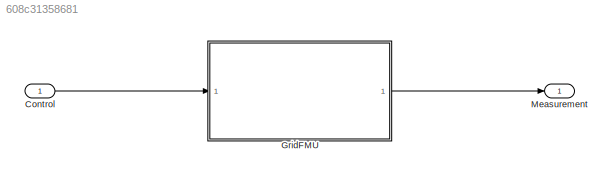
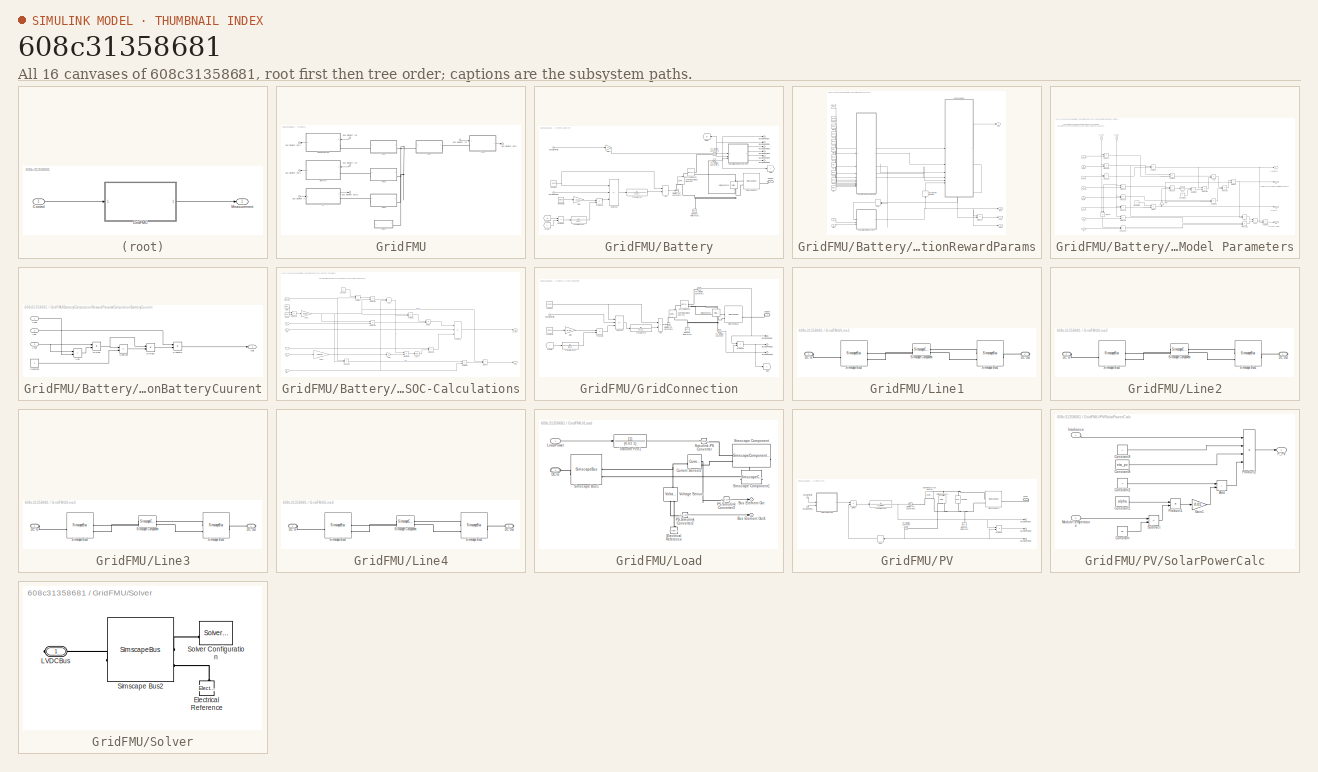
[diagram: thumbnail index - all 16 canvases of the model, root first then tree order]
MODEL slx_608c31358681
KIND model
CONFIG AbsTol = auto
CONFIG EnableMultiTasking = off
CONFIG FixedStep = Ts
CONFIG MaxStep = auto
CONFIG MinStep = auto
CONFIG RelTol = 1e-3
CONFIG SampleTimeConstraint = Unconstrained
CONFIG SolverName = FixedStepAuto
CONFIG StartTime = 0.0
CONFIG StopTime = 10.0
BLOCK [Inport] Control
  OutDataTypeStr = Bus: bus3
BLOCK [SubSystem] GridFMU
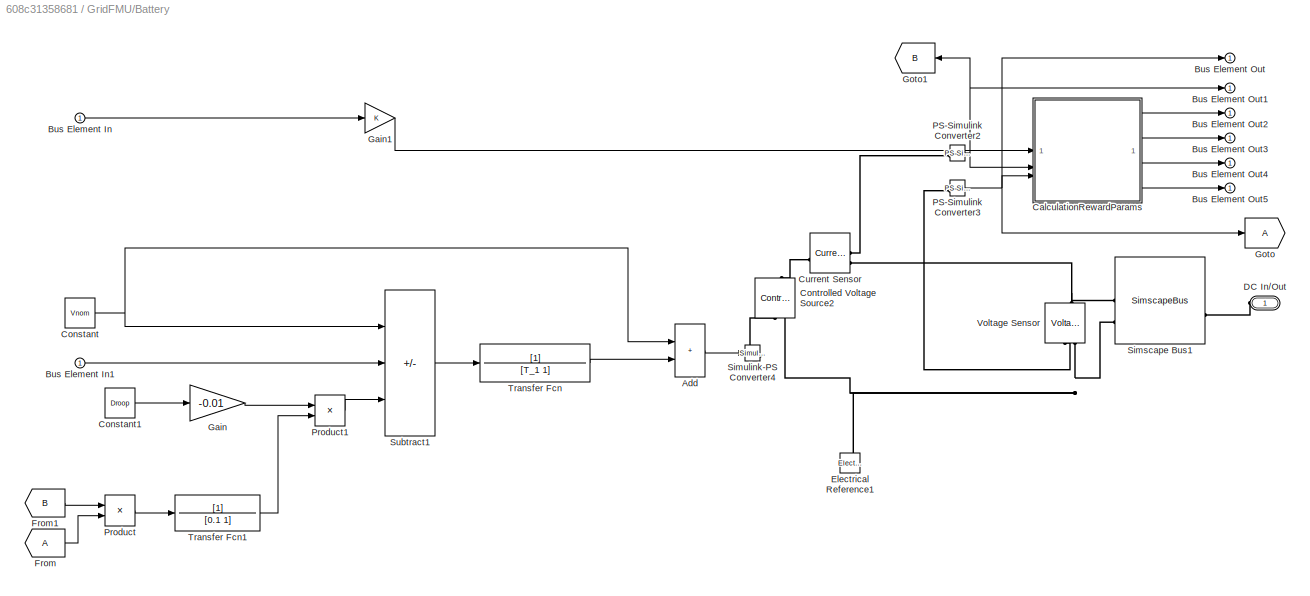
BLOCK [SubSystem] GridFMU/Battery
  NameLocation = top
BLOCK [Sum] GridFMU/Battery/Add
  IconShape = rectangular
BLOCK [Inport] GridFMU/Battery/Bus Element In
BLOCK [Inport] GridFMU/Battery/Bus Element In1
BLOCK [Outport] GridFMU/Battery/Bus Element Out
BLOCK [Outport] GridFMU/Battery/Bus Element Out1
BLOCK [Outport] GridFMU/Battery/Bus Element Out2
BLOCK [Outport] GridFMU/Battery/Bus Element Out3
BLOCK [Outport] GridFMU/Battery/Bus Element Out4
BLOCK [Outport] GridFMU/Battery/Bus Element Out5
BLOCK [SubSystem] GridFMU/Battery/CalculationRewardParams
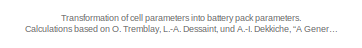
[diagram: GridFMU/Battery/CalculationRewardParams/Calculation of Model Parameters - part 1/2, top left region]
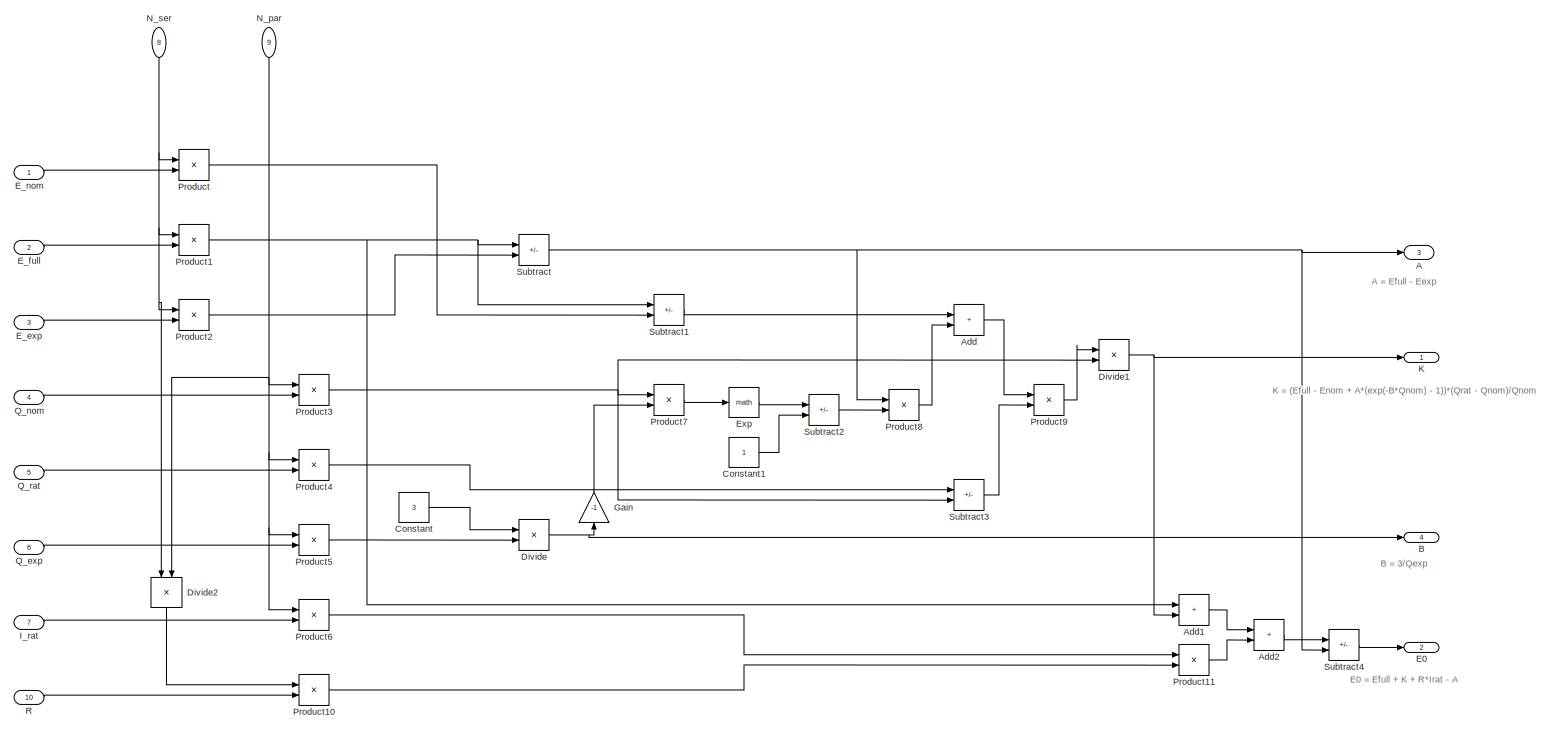
[diagram: GridFMU/Battery/CalculationRewardParams/Calculation of Model Parameters - part 2/2, most of the canvas]
BLOCK [SubSystem] GridFMU/Battery/CalculationRewardParams/Calculation of Model Parameters
BLOCK [Outport] GridFMU/Battery/CalculationRewardParams/Calculation of Model Parameters/A
  Port = 3
BLOCK [Sum] GridFMU/Battery/CalculationRewardParams/Calculation of Model Parameters/Add
  IconShape = rectangular
BLOCK [Sum] GridFMU/Battery/CalculationRewardParams/Calculation of Model Parameters/Add1
  IconShape = rectangular
BLOCK [Sum] GridFMU/Battery/CalculationRewardParams/Calculation of Model Parameters/Add2
  IconShape = rectangular
BLOCK [Outport] GridFMU/Battery/CalculationRewardParams/Calculation of Model Parameters/B
  Port = 4
BLOCK [Constant] GridFMU/Battery/CalculationRewardParams/Calculation of Model Parameters/Constant
  Value = 3
BLOCK [Constant] GridFMU/Battery/CalculationRewardParams/Calculation of Model Parameters/Constant1
BLOCK [Product] GridFMU/Battery/CalculationRewardParams/Calculation of Model Parameters/Divide
  Inputs = */
BLOCK [Product] GridFMU/Battery/CalculationRewardParams/Calculation of Model Parameters/Divide1
  Inputs = */
BLOCK [Product] GridFMU/Battery/CalculationRewardParams/Calculation of Model Parameters/Divide2
  Inputs = */
  NameLocation = left
BLOCK [Outport] GridFMU/Battery/CalculationRewardParams/Calculation of Model Parameters/E0
  Port = 2
BLOCK [Inport] GridFMU/Battery/CalculationRewardParams/Calculation of Model Parameters/E_exp
  Port = 3
BLOCK [Inport] GridFMU/Battery/CalculationRewardParams/Calculation of Model Parameters/E_full
  Port = 2
BLOCK [Inport] GridFMU/Battery/CalculationRewardParams/Calculation of Model Parameters/E_nom
BLOCK [Math] GridFMU/Battery/CalculationRewardParams/Calculation of Model Parameters/Exp
BLOCK [Gain] GridFMU/Battery/CalculationRewardParams/Calculation of Model Parameters/Gain
  Gain = -1
  NameLocation = right
BLOCK [Inport] GridFMU/Battery/CalculationRewardParams/Calculation of Model Parameters/I_rat
  Port = 7
BLOCK [Outport] GridFMU/Battery/CalculationRewardParams/Calculation of Model Parameters/K
BLOCK [Inport] GridFMU/Battery/CalculationRewardParams/Calculation of Model Parameters/N_par
  NameLocation = left
  Port = 9
BLOCK [Inport] GridFMU/Battery/CalculationRewardParams/Calculation of Model Parameters/N_ser
  NameLocation = left
  Port = 8
BLOCK [Product] GridFMU/Battery/CalculationRewardParams/Calculation of Model Parameters/Product
BLOCK [Product] GridFMU/Battery/CalculationRewardParams/Calculation of Model Parameters/Product1
BLOCK [Product] GridFMU/Battery/CalculationRewardParams/Calculation of Model Parameters/Product10
BLOCK [Product] GridFMU/Battery/CalculationRewardParams/Calculation of Model Parameters/Product11
BLOCK [Product] GridFMU/Battery/CalculationRewardParams/Calculation of Model Parameters/Product2
BLOCK [Product] GridFMU/Battery/CalculationRewardParams/Calculation of Model Parameters/Product3
BLOCK [Product] GridFMU/Battery/CalculationRewardParams/Calculation of Model Parameters/Product4
BLOCK [Product] GridFMU/Battery/CalculationRewardParams/Calculation of Model Parameters/Product5
BLOCK [Product] GridFMU/Battery/CalculationRewardParams/Calculation of Model Parameters/Product6
BLOCK [Product] GridFMU/Battery/CalculationRewardParams/Calculation of Model Parameters/Product7
BLOCK [Product] GridFMU/Battery/CalculationRewardParams/Calculation of Model Parameters/Product8
BLOCK [Product] GridFMU/Battery/CalculationRewardParams/Calculation of Model Parameters/Product9
BLOCK [Inport] GridFMU/Battery/CalculationRewardParams/Calculation of Model Parameters/Q_exp
  Port = 6
BLOCK [Inport] GridFMU/Battery/CalculationRewardParams/Calculation of Model Parameters/Q_nom
  Port = 4
BLOCK [Inport] GridFMU/Battery/CalculationRewardParams/Calculation of Model Parameters/Q_rat
  Port = 5
BLOCK [Inport] GridFMU/Battery/CalculationRewardParams/Calculation of Model Parameters/R
  Port = 10
BLOCK [Sum] GridFMU/Battery/CalculationRewardParams/Calculation of Model Parameters/Subtract
  IconShape = rectangular
  Inputs = +-
BLOCK [Sum] GridFMU/Battery/CalculationRewardParams/Calculation of Model Parameters/Subtract1
  IconShape = rectangular
  Inputs = +-
BLOCK [Sum] GridFMU/Battery/CalculationRewardParams/Calculation of Model Parameters/Subtract2
  IconShape = rectangular
  Inputs = +-
BLOCK [Sum] GridFMU/Battery/CalculationRewardParams/Calculation of Model Parameters/Subtract3
  IconShape = rectangular
  Inputs = +-
BLOCK [Sum] GridFMU/Battery/CalculationRewardParams/Calculation of Model Parameters/Subtract4
  IconShape = rectangular
  Inputs = +-
BLOCK [SubSystem] GridFMU/Battery/CalculationRewardParams/CalculationBatteryCuurent
BLOCK [Sum] GridFMU/Battery/CalculationRewardParams/CalculationBatteryCuurent/Add
  IconShape = rectangular
BLOCK [Constant] GridFMU/Battery/CalculationRewardParams/CalculationBatteryCuurent/Constant
BLOCK [Product] GridFMU/Battery/CalculationRewardParams/CalculationBatteryCuurent/Divide
  Inputs = */
BLOCK [Product] GridFMU/Battery/CalculationRewardParams/CalculationBatteryCuurent/Divide1
  Inputs = */
BLOCK [Outport] GridFMU/Battery/CalculationRewardParams/CalculationBatteryCuurent/Ibat
BLOCK [Inport] GridFMU/Battery/CalculationRewardParams/CalculationBatteryCuurent/Inet
  Port = 2
BLOCK [Product] GridFMU/Battery/CalculationRewardParams/CalculationBatteryCuurent/Product2
BLOCK [Sum] GridFMU/Battery/CalculationRewardParams/CalculationBatteryCuurent/Subtract
  IconShape = rectangular
  Inputs = -+
BLOCK [Inport] GridFMU/Battery/CalculationRewardParams/CalculationBatteryCuurent/Vbat
  NameLocation = top
BLOCK [Inport] GridFMU/Battery/CalculationRewardParams/CalculationBatteryCuurent/Vnet
  Port = 3
BLOCK [Delay] GridFMU/Battery/CalculationRewardParams/Delay
  DelayLength = 1
  InitialCondition = 1
  InitialConditionSource = Input port
  InputPortMap = u0,p4
  NameLocation = top
BLOCK [DiscreteIntegrator] GridFMU/Battery/CalculationRewardParams/Discrete-Time Integrator
  ICPrevOutput = DiscIntNeverNeededParam
  ICPrevScaledInput = DiscIntNeverNeededParam
  InitialConditionSetting = Auto
  NameLocation = right
  SampleTime = -1
BLOCK [Constant] GridFMU/Battery/CalculationRewardParams/Eexp
  Value = Eexp
BLOCK [Constant] GridFMU/Battery/CalculationRewardParams/Efull
  Value = Efull
BLOCK [Constant] GridFMU/Battery/CalculationRewardParams/Enom
  Value = Enom
BLOCK [Inport] GridFMU/Battery/CalculationRewardParams/I
  Port = 2
BLOCK [Outport] GridFMU/Battery/CalculationRewardParams/Ibat
  Port = 2
BLOCK [Constant] GridFMU/Battery/CalculationRewardParams/Irat
  Value = Irat
BLOCK [Constant] GridFMU/Battery/CalculationRewardParams/Npar
  Value = Npar
BLOCK [Constant] GridFMU/Battery/CalculationRewardParams/Nser
  Value = Nser
BLOCK [Outport] GridFMU/Battery/CalculationRewardParams/Pbat
  Port = 4
BLOCK [Product] GridFMU/Battery/CalculationRewardParams/Product
BLOCK [Constant] GridFMU/Battery/CalculationRewardParams/Qexp
  Value = Qexp
BLOCK [Constant] GridFMU/Battery/CalculationRewardParams/Qnom
  Value = Qnom
BLOCK [Constant] GridFMU/Battery/CalculationRewardParams/Qrat
  Value = Qrat
BLOCK [Constant] GridFMU/Battery/CalculationRewardParams/Rint
  Value = Rint
BLOCK [Outport] GridFMU/Battery/CalculationRewardParams/SOC
BLOCK [SubSystem] GridFMU/Battery/CalculationRewardParams/SOC-Calculations
BLOCK [Inport] GridFMU/Battery/CalculationRewardParams/SOC-Calculations/A
  Port = 4
BLOCK [Sum] GridFMU/Battery/CalculationRewardParams/SOC-Calculations/Add
  IconShape = rectangular
BLOCK [Inport] GridFMU/Battery/CalculationRewardParams/SOC-Calculations/B
  Port = 5
BLOCK [Constant] GridFMU/Battery/CalculationRewardParams/SOC-Calculations/Constant
BLOCK [Product] GridFMU/Battery/CalculationRewardParams/SOC-Calculations/Divide
  Inputs = /*
BLOCK [Product] GridFMU/Battery/CalculationRewardParams/SOC-Calculations/Divide1
  Inputs = /*
BLOCK [Inport] GridFMU/Battery/CalculationRewardParams/SOC-Calculations/E0
  Port = 3
BLOCK [Outport] GridFMU/Battery/CalculationRewardParams/SOC-Calculations/E_Bat
  NameLocation = top
  Port = 2
BLOCK [Math] GridFMU/Battery/CalculationRewardParams/SOC-Calculations/Exp
BLOCK [Gain] GridFMU/Battery/CalculationRewardParams/SOC-Calculations/Gain
  Gain = -1
BLOCK [Gain] GridFMU/Battery/CalculationRewardParams/SOC-Calculations/Gain2
  Gain = 1/3600.0
BLOCK [Gain] GridFMU/Battery/CalculationRewardParams/SOC-Calculations/Gain3
  Gain = 3600.0
BLOCK [Inport] GridFMU/Battery/CalculationRewardParams/SOC-Calculations/K
  Port = 2
BLOCK [Constant] GridFMU/Battery/CalculationRewardParams/SOC-Calculations/Npar1
  Value = Npar
BLOCK [Product] GridFMU/Battery/CalculationRewardParams/SOC-Calculations/Product1
BLOCK [Product] GridFMU/Battery/CalculationRewardParams/SOC-Calculations/Product2
BLOCK [Product] GridFMU/Battery/CalculationRewardParams/SOC-Calculations/Product3
BLOCK [Product] GridFMU/Battery/CalculationRewardParams/SOC-Calculations/Product4
BLOCK [Product] GridFMU/Battery/CalculationRewardParams/SOC-Calculations/Product5
BLOCK [Product] GridFMU/Battery/CalculationRewardParams/SOC-Calculations/Product6
BLOCK [Constant] GridFMU/Battery/CalculationRewardParams/SOC-Calculations/Qrat1
  Value = Qrat
BLOCK [Outport] GridFMU/Battery/CalculationRewardParams/SOC-Calculations/SOC
BLOCK [Inport] GridFMU/Battery/CalculationRewardParams/SOC-Calculations/SOC_Init
BLOCK [Sum] GridFMU/Battery/CalculationRewardParams/SOC-Calculations/Subtract
  IconShape = rectangular
  Inputs = +-
BLOCK [Sum] GridFMU/Battery/CalculationRewardParams/SOC-Calculations/Subtract1
  IconShape = rectangular
  Inputs = -++
BLOCK [Sum] GridFMU/Battery/CalculationRewardParams/SOC-Calculations/Subtract2
  IconShape = rectangular
  Inputs = +-
BLOCK [Sum] GridFMU/Battery/CalculationRewardParams/SOC-Calculations/Subtract3
  IconShape = rectangular
  Inputs = +-
BLOCK [Inport] GridFMU/Battery/CalculationRewardParams/SOC-Calculations/idt
  Port = 6
BLOCK [Inport] GridFMU/Battery/CalculationRewardParams/SOC_Init
BLOCK [Outport] GridFMU/Battery/CalculationRewardParams/Vbat
  Port = 3
BLOCK [Inport] GridFMU/Battery/CalculationRewardParams/Vref
  Port = 3
BLOCK [Constant] GridFMU/Battery/Constant
  Value = Vnom
BLOCK [Constant] GridFMU/Battery/Constant1
  Value = Droop
BLOCK [Reference] GridFMU/Battery/Controlled Voltage Source2  REF=fl_lib/Electrical/Electrical Sources/Controlled Voltage
Source
  NameLocation = right
  SourceBlock = fl_lib/Electrical/Electrical Sources/Controlled Voltage\nSource
  SourceType = Controlled Voltage\nSource
BLOCK [Reference] GridFMU/Battery/Current Sensor  REF=fl_lib/Electrical/Electrical Sensors/Current Sensor
  SourceBlock = fl_lib/Electrical/Electrical Sensors/Current Sensor
  SourceType = Current Sensor
BLOCK [PMIOPort] GridFMU/Battery/DC In//Out
  NameLocation = top
  Side = Left
BLOCK [Reference] GridFMU/Battery/Electrical Reference1  REF=fl_lib/Electrical/Electrical Elements/Electrical Reference
  NameLocation = right
  SourceBlock = fl_lib/Electrical/Electrical Elements/Electrical Reference
  SourceType = Electrical Reference
BLOCK [From] GridFMU/Battery/From
BLOCK [From] GridFMU/Battery/From1
  GotoTag = B
BLOCK [Gain] GridFMU/Battery/Gain
  Gain = -0.01
BLOCK [Gain] GridFMU/Battery/Gain1
BLOCK [Goto] GridFMU/Battery/Goto
BLOCK [Goto] GridFMU/Battery/Goto1
  GotoTag = B
  NameLocation = top
BLOCK [Reference] GridFMU/Battery/PS-Simulink Converter2  REF=nesl_utility/PS-Simulink
Converter
  SourceBlock = nesl_utility/PS-Simulink\nConverter
  SourceType = PS-Simulink\nConverter
BLOCK [Reference] GridFMU/Battery/PS-Simulink Converter3  REF=nesl_utility/PS-Simulink
Converter
  SourceBlock = nesl_utility/PS-Simulink\nConverter
  SourceType = PS-Simulink\nConverter
BLOCK [Product] GridFMU/Battery/Product
BLOCK [Product] GridFMU/Battery/Product1
BLOCK [SimscapeBus] GridFMU/Battery/Simscape Bus1
  HierarchyStrings = DCHigh;DCLow
  NameLocation = top
BLOCK [Reference] GridFMU/Battery/Simulink-PS Converter4  REF=nesl_utility/Simulink-PS
Converter
  SourceBlock = nesl_utility/Simulink-PS\nConverter
  SourceType = Simulink-PS\nConverter
BLOCK [Sum] GridFMU/Battery/Subtract1
  IconShape = rectangular
  Inputs = -++
BLOCK [TransferFcn] GridFMU/Battery/Transfer Fcn
  Denominator = [T_1 1]
BLOCK [TransferFcn] GridFMU/Battery/Transfer Fcn1
  Denominator = [0.1 1]
BLOCK [Reference] GridFMU/Battery/Voltage Sensor  REF=fl_lib/Electrical/Electrical Sensors/Voltage Sensor
  NameLocation = right
  SourceBlock = fl_lib/Electrical/Electrical Sensors/Voltage Sensor
  SourceType = Voltage Sensor
BLOCK [Inport] GridFMU/Bus Element In1
BLOCK [Inport] GridFMU/Bus Element In2
BLOCK [Inport] GridFMU/Bus Element In6
  NameLocation = top
BLOCK [Inport] GridFMU/Bus Element In9
  NameLocation = top
BLOCK [Outport] GridFMU/Bus Element Out1
  NameLocation = top
BLOCK [Outport] GridFMU/Bus Element Out12
BLOCK [Outport] GridFMU/Bus Element Out3
  NameLocation = top
BLOCK [Outport] GridFMU/Bus Element Out5
BLOCK [SubSystem] GridFMU/GridConnection
  NameLocation = top
BLOCK [Sum] GridFMU/GridConnection/Add
  IconShape = rectangular
BLOCK [Inport] GridFMU/GridConnection/Bus Element In
BLOCK [Outport] GridFMU/GridConnection/Bus Element Out
BLOCK [Outport] GridFMU/GridConnection/Bus Element Out1
BLOCK [Outport] GridFMU/GridConnection/Bus Element Out2
BLOCK [Constant] GridFMU/GridConnection/Constant
  Value = Vnom
BLOCK [Constant] GridFMU/GridConnection/Constant2
  Value = Droop
BLOCK [Reference] GridFMU/GridConnection/Controlled Voltage Source2  REF=fl_lib/Electrical/Electrical Sources/Controlled Voltage
Source
  NameLocation = right
  SourceBlock = fl_lib/Electrical/Electrical Sources/Controlled Voltage\nSource
  SourceType = Controlled Voltage\nSource
BLOCK [Reference] GridFMU/GridConnection/Current Sensor  REF=fl_lib/Electrical/Electrical Sensors/Current Sensor
  SourceBlock = fl_lib/Electrical/Electrical Sensors/Current Sensor
  SourceType = Current Sensor
BLOCK [PMIOPort] GridFMU/GridConnection/DC In//Out
  NameLocation = top
  Side = Left
BLOCK [Reference] GridFMU/GridConnection/Electrical Reference1  REF=fl_lib/Electrical/Electrical Elements/Electrical Reference
  NameLocation = right
  SourceBlock = fl_lib/Electrical/Electrical Elements/Electrical Reference
  SourceType = Electrical Reference
BLOCK [From] GridFMU/GridConnection/From3
BLOCK [Gain] GridFMU/GridConnection/Gain
  Gain = -0.01
BLOCK [Goto] GridFMU/GridConnection/Goto
BLOCK [Reference] GridFMU/GridConnection/PS-Simulink Converter  REF=nesl_utility/PS-Simulink
Converter
  SourceBlock = nesl_utility/PS-Simulink\nConverter
  SourceType = PS-Simulink\nConverter
BLOCK [Reference] GridFMU/GridConnection/PS-Simulink Converter1  REF=nesl_utility/PS-Simulink
Converter
  SourceBlock = nesl_utility/PS-Simulink\nConverter
  SourceType = PS-Simulink\nConverter
BLOCK [Product] GridFMU/GridConnection/Product1
BLOCK [Product] GridFMU/GridConnection/Product2
BLOCK [SimscapeBus] GridFMU/GridConnection/Simscape Bus1
  HierarchyStrings = DCHigh;DCLow
  NameLocation = top
BLOCK [Reference] GridFMU/GridConnection/Simulink-PS Converter4  REF=nesl_utility/Simulink-PS
Converter
  SourceBlock = nesl_utility/Simulink-PS\nConverter
  SourceType = Simulink-PS\nConverter
BLOCK [Sum] GridFMU/GridConnection/Subtract1
  IconShape = rectangular
  Inputs = -++
BLOCK [TransferFcn] GridFMU/GridConnection/Transfer Fcn
  Denominator = [T_1 1]
BLOCK [TransferFcn] GridFMU/GridConnection/Transfer Fcn1
  Denominator = [0.1 1]
BLOCK [Reference] GridFMU/GridConnection/Voltage Sensor  REF=fl_lib/Electrical/Electrical Sensors/Voltage Sensor
  NameLocation = right
  SourceBlock = fl_lib/Electrical/Electrical Sensors/Voltage Sensor
  SourceType = Voltage Sensor
BLOCK [SubSystem] GridFMU/Line1
  Description = Simple model of a wire with two conductors.\n\nResistor and Inductor of the wire are calculated based on distance and radius of the conductors and the length of the line.
BLOCK [PMIOPort] GridFMU/Line1/DC In
  Port = 2
  Side = Left
BLOCK [PMIOPort] GridFMU/Line1/DC Out
  NameLocation = top
  Side = Right
BLOCK [SimscapeBus] GridFMU/Line1/Simscape Bus1
  HierarchyStrings = DCHigh;DCLow
  NameLocation = top
BLOCK [SimscapeBus] GridFMU/Line1/Simscape Bus2
  HierarchyStrings = DCHigh;DCLow
BLOCK [SimscapeComponentBlock] GridFMU/Line1/Simscape Component
  ClassName = Wire_2Cond
  ComponentPath = Wire_2Cond
  ComponentVariantNames = ["Wire_2Cond"]
  ComponentVariants = ["Wire_2Cond"]
  CopyFcn = simscape.engine.sli.internal.componentblockcallback(gcbh,'COPY')
  InternalSimscapePortConfiguration = {"Bottom":[],"Left":[{"id":"hIn","label":"Hin","type":"foundation.electrical.electrical"},{"id":"lIn","label":"Lin","type":"foundation.electrical.electrical"}],"Right":[{"id":"hOut","label":"Hout","type":"foundation.electrical.electrical"},{"id":"lOut","label":"Lout","type":"foundation.electrical.electrical"}],"Top":[]}  <repeated x4 — deduplicated; at blocks: Simscape Component>
  L = l
  L_conf = compiletime
  L_unit = 1
  Lh = 0
  Lh_nominal_specify = off
  Lh_nominal_unit = A
  Lh_nominal_value = 1
  Lh_priority = None
  Lh_specify = off
  Lh_unit = A
  Ll = 0
  Ll_nominal_specify = off
  Ll_nominal_unit = A
  Ll_nominal_value = 1
  Ll_priority = None
  Ll_specify = off
  Ll_unit = A
  MaskType = wire2 Conductors
  PreCopyFcn = simscape.engine.sli.internal.componentblockcallback(gcbh,'PRECOPY')
  PreDeleteFcn = simscape.engine.sli.internal.componentblockcallback(gcbh,'PREDELETE')
  SchemaVersion = 1
  SourceFile = Wire_2Cond
  d = d
  d_conf = compiletime
  d_unit = 1
  r = r
  r_conf = compiletime
  r_unit = 1
  specR = 1.68e-8
  specR_conf = compiletime
  specR_unit = Ohm
BLOCK [SubSystem] GridFMU/Line2
  Description = Simple model of a wire with two conductors.\n\nResistor and Inductor of the wire are calculated based on distance and radius of the conductors and the length of the line.
BLOCK [PMIOPort] GridFMU/Line2/DC In
  Port = 2
  Side = Left
BLOCK [PMIOPort] GridFMU/Line2/DC Out
  NameLocation = top
  Side = Right
BLOCK [SimscapeBus] GridFMU/Line2/Simscape Bus1
  HierarchyStrings = DCHigh;DCLow
  NameLocation = top
BLOCK [SimscapeBus] GridFMU/Line2/Simscape Bus2
  HierarchyStrings = DCHigh;DCLow
BLOCK [SimscapeComponentBlock] GridFMU/Line2/Simscape Component
  ClassName = Wire_2Cond
  ComponentPath = Wire_2Cond
  ComponentVariantNames = ["Wire_2Cond"]
  ComponentVariants = ["Wire_2Cond"]
  CopyFcn = simscape.engine.sli.internal.componentblockcallback(gcbh,'COPY')
  L = l
  L_conf = compiletime
  L_unit = 1
  Lh = 0
  Lh_nominal_specify = off
  Lh_nominal_unit = A
  Lh_nominal_value = 1
  Lh_priority = None
  Lh_specify = off
  Lh_unit = A
  Ll = 0
  Ll_nominal_specify = off
  Ll_nominal_unit = A
  Ll_nominal_value = 1
  Ll_priority = None
  Ll_specify = off
  Ll_unit = A
  MaskType = wire2 Conductors
  PreCopyFcn = simscape.engine.sli.internal.componentblockcallback(gcbh,'PRECOPY')
  PreDeleteFcn = simscape.engine.sli.internal.componentblockcallback(gcbh,'PREDELETE')
  SchemaVersion = 1
  SourceFile = Wire_2Cond
  d = d
  d_conf = compiletime
  d_unit = 1
  r = r
  r_conf = compiletime
  r_unit = 1
  specR = 1.68e-8
  specR_conf = compiletime
  specR_unit = Ohm
BLOCK [SubSystem] GridFMU/Line3
  Description = Simple model of a wire with two conductors.\n\nResistor and Inductor of the wire are calculated based on distance and radius of the conductors and the length of the line.
BLOCK [PMIOPort] GridFMU/Line3/DC In
  Port = 2
  Side = Left
BLOCK [PMIOPort] GridFMU/Line3/DC Out
  NameLocation = top
  Side = Right
BLOCK [SimscapeBus] GridFMU/Line3/Simscape Bus1
  HierarchyStrings = DCHigh;DCLow
  NameLocation = top
BLOCK [SimscapeBus] GridFMU/Line3/Simscape Bus2
  HierarchyStrings = DCHigh;DCLow
BLOCK [SimscapeComponentBlock] GridFMU/Line3/Simscape Component
  ClassName = Wire_2Cond
  ComponentPath = Wire_2Cond
  ComponentVariantNames = ["Wire_2Cond"]
  ComponentVariants = ["Wire_2Cond"]
  CopyFcn = simscape.engine.sli.internal.componentblockcallback(gcbh,'COPY')
  L = l
  L_conf = compiletime
  L_unit = 1
  Lh = 0
  Lh_nominal_specify = off
  Lh_nominal_unit = A
  Lh_nominal_value = 1
  Lh_priority = None
  Lh_specify = off
  Lh_unit = A
  Ll = 0
  Ll_nominal_specify = off
  Ll_nominal_unit = A
  Ll_nominal_value = 1
  Ll_priority = None
  Ll_specify = off
  Ll_unit = A
  MaskType = wire2 Conductors
  PreCopyFcn = simscape.engine.sli.internal.componentblockcallback(gcbh,'PRECOPY')
  PreDeleteFcn = simscape.engine.sli.internal.componentblockcallback(gcbh,'PREDELETE')
  SchemaVersion = 1
  SourceFile = Wire_2Cond
  d = d
  d_conf = compiletime
  d_unit = 1
  r = r
  r_conf = compiletime
  r_unit = 1
  specR = 1.68e-8
  specR_conf = compiletime
  specR_unit = Ohm
BLOCK [SubSystem] GridFMU/Line4
  Description = Simple model of a wire with two conductors.\n\nResistor and Inductor of the wire are calculated based on distance and radius of the conductors and the length of the line.
BLOCK [PMIOPort] GridFMU/Line4/DC In
  Port = 2
  Side = Left
BLOCK [PMIOPort] GridFMU/Line4/DC Out
  NameLocation = top
  Side = Right
BLOCK [SimscapeBus] GridFMU/Line4/Simscape Bus1
  HierarchyStrings = DCHigh;DCLow
  NameLocation = top
BLOCK [SimscapeBus] GridFMU/Line4/Simscape Bus2
  HierarchyStrings = DCHigh;DCLow
BLOCK [SimscapeComponentBlock] GridFMU/Line4/Simscape Component
  ClassName = Wire_2Cond
  ComponentPath = Wire_2Cond
  ComponentVariantNames = ["Wire_2Cond"]
  ComponentVariants = ["Wire_2Cond"]
  CopyFcn = simscape.engine.sli.internal.componentblockcallback(gcbh,'COPY')
  L = l
  L_conf = compiletime
  L_unit = 1
  Lh = 0
  Lh_nominal_specify = off
  Lh_nominal_unit = A
  Lh_nominal_value = 1
  Lh_priority = None
  Lh_specify = off
  Lh_unit = A
  Ll = 0
  Ll_nominal_specify = off
  Ll_nominal_unit = A
  Ll_nominal_value = 1
  Ll_priority = None
  Ll_specify = off
  Ll_unit = A
  MaskType = wire2 Conductors
  PreCopyFcn = simscape.engine.sli.internal.componentblockcallback(gcbh,'PRECOPY')
  PreDeleteFcn = simscape.engine.sli.internal.componentblockcallback(gcbh,'PREDELETE')
  SchemaVersion = 1
  SourceFile = Wire_2Cond
  d = d
  d_conf = compiletime
  d_unit = 1
  r = r
  r_conf = compiletime
  r_unit = 1
  specR = 1.68e-8
  specR_conf = compiletime
  specR_unit = Ohm
BLOCK [SubSystem] GridFMU/Load
BLOCK [Outport] GridFMU/Load/Bus Element Out
BLOCK [Outport] GridFMU/Load/Bus Element Out4
BLOCK [Reference] GridFMU/Load/Current Sensor2  REF=fl_lib/Electrical/Electrical Sensors/Current Sensor
  SourceBlock = fl_lib/Electrical/Electrical Sensors/Current Sensor
  SourceType = Current Sensor
BLOCK [PMIOPort] GridFMU/Load/DC In
  Side = Left
BLOCK [Reference] GridFMU/Load/Electrical Reference  REF=fl_lib/Electrical/Electrical Elements/Electrical Reference
  NameLocation = right
  SourceBlock = fl_lib/Electrical/Electrical Elements/Electrical Reference
  SourceType = Electrical Reference
BLOCK [Inport] GridFMU/Load/LoadPower
BLOCK [Reference] GridFMU/Load/PS-Simulink Converter2  REF=nesl_utility/PS-Simulink
Converter
  SourceBlock = nesl_utility/PS-Simulink\nConverter
  SourceType = PS-Simulink\nConverter
BLOCK [Reference] GridFMU/Load/PS-Simulink Converter3  REF=nesl_utility/PS-Simulink
Converter
  SourceBlock = nesl_utility/PS-Simulink\nConverter
  SourceType = PS-Simulink\nConverter
BLOCK [SimscapeBus] GridFMU/Load/Simscape Bus1
  HierarchyStrings = DCHigh;DCLow
BLOCK [SimscapeComponentBlock] GridFMU/Load/Simscape Component
  ClassName = VariablePowerLoad
  ComponentPath = VariablePowerLoad
  ComponentVariantNames = ["VariablePowerLoad"]
  ComponentVariants = ["VariablePowerLoad"]
  CopyFcn = simscape.engine.sli.internal.componentblockcallback(gcbh,'COPY')
  InternalSimscapePortConfiguration = {"Bottom":[],"Left":[{"id":"Power","label":"P","type":"input"},{"id":"p","label":"+","type":"foundation.electrical.electrical"}],"Right":[{"id":"n","label":"-","type":"foundation.electrical.electrical"}],"Top":[]}
  MaskType = Variable power load. It might be necesarry to use local simscape solver.
  MaxV = Vmax
  MaxV_conf = compiletime
  MaxV_unit = 1
  MinV = Vmin
  MinV_conf = compiletime
  MinV_unit = 1
  PreCopyFcn = simscape.engine.sli.internal.componentblockcallback(gcbh,'PRECOPY')
  PreDeleteFcn = simscape.engine.sli.internal.componentblockcallback(gcbh,'PREDELETE')
  Psoll = 0
  Psoll_nominal_specify = off
  Psoll_nominal_unit = W
  Psoll_nominal_value = 1
  Psoll_priority = None
  Psoll_specify = off
  Psoll_unit = W
  SchemaVersion = 1
  Slope = Slope
  Slope_conf = compiletime
  Slope_unit = 1
  SourceFile = VariablePowerLoad
  Vsoll = Vnom
  Vsoll_conf = compiletime
  Vsoll_unit = 1
  i = 0
  i_nominal_specify = off
  i_nominal_unit = A
  i_nominal_value = 1
  i_priority = None
  i_specify = off
  i_unit = A
  v = 0
  v_nominal_specify = off
  v_nominal_unit = V
  v_nominal_value = 1
  v_priority = None
  v_specify = off
  v_unit = V
BLOCK [SimscapeComponentBlock] GridFMU/Load/Simscape Component1
  ClassName = shortCircuit
  ComponentPath = shortCircuit
  ComponentVariantNames = ["shortCircuit"]
  ComponentVariants = ["shortCircuit"]
  CopyFcn = simscape.engine.sli.internal.componentblockcallback(gcbh,'COPY')
  InternalSimscapePortConfiguration = {"Bottom":[],"Left":[{"id":"p","label":"+","type":"foundation.electrical.electrical"}],"Right":[{"id":"n","label":"-","type":"foundation.electrical.electrical"}],"Top":[]}
  MaskType = shortCircuit
  NameLocation = top
  PreCopyFcn = simscape.engine.sli.internal.componentblockcallback(gcbh,'PRECOPY')
  PreDeleteFcn = simscape.engine.sli.internal.componentblockcallback(gcbh,'PREDELETE')
  SchemaVersion = 1
  SourceFile = shortCircuit
BLOCK [Reference] GridFMU/Load/Simulink-PS Converter  REF=nesl_utility/Simulink-PS
Converter
  SourceBlock = nesl_utility/Simulink-PS\nConverter
  SourceType = Simulink-PS\nConverter
BLOCK [TransferFcn] GridFMU/Load/Transfer Fcn1
  Denominator = [0.01 1]
BLOCK [Reference] GridFMU/Load/Voltage Sensor  REF=fl_lib/Electrical/Electrical Sensors/Voltage Sensor
  NameLocation = right
  SourceBlock = fl_lib/Electrical/Electrical Sensors/Voltage Sensor
  SourceType = Voltage Sensor
BLOCK [SubSystem] GridFMU/PV
BLOCK [Inport] GridFMU/PV/Bus Element In
BLOCK [Inport] GridFMU/PV/Bus Element In1
BLOCK [Outport] GridFMU/PV/Bus Element Out
BLOCK [Outport] GridFMU/PV/Bus Element Out1
BLOCK [Outport] GridFMU/PV/Bus Element Out2
BLOCK [Reference] GridFMU/PV/Controlled Current Source  REF=fl_lib/Electrical/Electrical Sources/Controlled Current
Source
  NameLocation = right
  SourceBlock = fl_lib/Electrical/Electrical Sources/Controlled Current\nSource
  SourceType = Controlled Current\nSource
BLOCK [PMIOPort] GridFMU/PV/DC Out
  NameLocation = top
  Side = Right
BLOCK [Delay] GridFMU/PV/Delay
  DelayLength = 1
  InitialCondition = 48.0
  InputPortMap = u0
  NameLocation = top
BLOCK [Product] GridFMU/PV/Divide
  Inputs = */
BLOCK [Reference] GridFMU/PV/Electrical Reference  REF=fl_lib/Electrical/Electrical Elements/Electrical Reference
  NameLocation = right
  SourceBlock = fl_lib/Electrical/Electrical Elements/Electrical Reference
  SourceType = Electrical Reference
BLOCK [Reference] GridFMU/PV/PS-Simulink Converter  REF=nesl_utility/PS-Simulink
Converter
  NameLocation = top
  SourceBlock = nesl_utility/PS-Simulink\nConverter
  SourceType = PS-Simulink\nConverter
BLOCK [Product] GridFMU/PV/Product
BLOCK [Reference] GridFMU/PV/Resistor  REF=fl_lib/Electrical/Electrical Elements/Resistor
  NameLocation = left
  SourceBlock = fl_lib/Electrical/Electrical Elements/Resistor
  SourceType = Resistor
BLOCK [SimscapeBus] GridFMU/PV/Simscape Bus2
  HierarchyStrings = DCHigh;DCLow
  NameLocation = top
BLOCK [Reference] GridFMU/PV/Simulink-PS Converter5  REF=nesl_utility/Simulink-PS
Converter
  SourceBlock = nesl_utility/Simulink-PS\nConverter
  SourceType = Simulink-PS\nConverter
BLOCK [SubSystem] GridFMU/PV/SolarPowerCalc
BLOCK [Sum] GridFMU/PV/SolarPowerCalc/Add
  IconShape = rectangular
BLOCK [Constant] GridFMU/PV/SolarPowerCalc/Constant
  Value = 25
BLOCK [Constant] GridFMU/PV/SolarPowerCalc/Constant1
  Value = alpha
BLOCK [Constant] GridFMU/PV/SolarPowerCalc/Constant2
BLOCK [Constant] GridFMU/PV/SolarPowerCalc/Constant8
  Value = eta_pv
BLOCK [Constant] GridFMU/PV/SolarPowerCalc/Constant9
  Value = A
BLOCK [Gain] GridFMU/PV/SolarPowerCalc/Gain1
  Gain = 0.01
BLOCK [Inport] GridFMU/PV/SolarPowerCalc/Irradiance
BLOCK [Inport] GridFMU/PV/SolarPowerCalc/ModuleTemperature
  Port = 2
BLOCK [Outport] GridFMU/PV/SolarPowerCalc/P_PV
BLOCK [Product] GridFMU/PV/SolarPowerCalc/Product1
BLOCK [Product] GridFMU/PV/SolarPowerCalc/Product2
  Inputs = 4
BLOCK [Sum] GridFMU/PV/SolarPowerCalc/Subtract
  IconShape = rectangular
  Inputs = +-
BLOCK [TransferFcn] GridFMU/PV/Transfer Fcn1
  Denominator = [T_mppt 1]
BLOCK [Reference] GridFMU/PV/Voltage Sensor1  REF=fl_lib/Electrical/Electrical Sensors/Voltage Sensor
  NameLocation = right
  SourceBlock = fl_lib/Electrical/Electrical Sensors/Voltage Sensor
  SourceType = Voltage Sensor
BLOCK [SubSystem] GridFMU/Solver
BLOCK [Reference] GridFMU/Solver/Electrical Reference  REF=fl_lib/Electrical/Electrical Elements/Electrical Reference
  NameLocation = right
  SourceBlock = fl_lib/Electrical/Electrical Elements/Electrical Reference
  SourceType = Electrical Reference
BLOCK [PMIOPort] GridFMU/Solver/LVDCBus
  Side = Right
BLOCK [SimscapeBus] GridFMU/Solver/Simscape Bus2
  HierarchyStrings = DCHigh;DCLow
BLOCK [Reference] GridFMU/Solver/Solver Configuration  REF=nesl_utility/Solver
Configuration
  SourceBlock = nesl_utility/Solver\nConfiguration
  SourceType = Solver\nConfiguration
BLOCK [Outport] Measurement
ANNOTATION GridFMU/Battery/CalculationRewardParams/Calculation of Model Parameters: Transformation of cell parameters into battery pack parameters. Calculations based on O. Tremblay, L.-A. Dessaint, und A.-I. Dekkiche, “A Generic Battery Model for the Dynamic Simulation of Hybrid Electric Vehicles,” in 2007 IEEE Vehicle Power and Propulsion Conference , 2007, S. 284–289.
ANNOTATION GridFMU/Battery/CalculationRewardParams/Calculation of Model Parameters: A = Efull - Eexp
ANNOTATION GridFMU/Battery/CalculationRewardParams/Calculation of Model Parameters: B = 3/Qexp
ANNOTATION GridFMU/Battery/CalculationRewardParams/Calculation of Model Parameters: E0 = Efull + K + R*Irat - A
ANNOTATION GridFMU/Battery/CalculationRewardParams/Calculation of Model Parameters: K = (Efull - Enom + A*(exp(-B*Qnom) - 1))*(Qrat - Qnom)/Qnom
ANNOTATION GridFMU/Battery/CalculationRewardParams/SOC-Calculations: Generic battery model based on O. Tremblay, L.-A. Dessaint, und A.-I. Dekkiche, “A Generic Battery Model for the Dynamic Simulation of Hybrid Electric Vehicles,” in 2007 IEEE Vehicle Power and Propulsion Conference , 2007, S. 284–289.
LINE Control:1 -> GridFMU:1
LINE GridFMU/Battery/Add:1 -> GridFMU/Battery/Simulink-PS Converter4:1
LINE GridFMU/Battery/Bus Element In1:1 -> GridFMU/Battery/Subtract1:2
LINE GridFMU/Battery/Bus Element In:1 -> GridFMU/Battery/Gain1:1
LINE GridFMU/Battery/CalculationRewardParams/Calculation of Model Parameters/Add1:1 -> GridFMU/Battery/CalculationRewardParams/Calculation of Model Parameters/Add2:1
LINE GridFMU/Battery/CalculationRewardParams/Calculation of Model Parameters/Add2:1 -> GridFMU/Battery/CalculationRewardParams/Calculation of Model Parameters/Subtract4:1
LINE GridFMU/Battery/CalculationRewardParams/Calculation of Model Parameters/Add:1 -> GridFMU/Battery/CalculationRewardParams/Calculation of Model Parameters/Product9:1
LINE GridFMU/Battery/CalculationRewardParams/Calculation of Model Parameters/Constant1:1 -> GridFMU/Battery/CalculationRewardParams/Calculation of Model Parameters/Subtract2:2
LINE GridFMU/Battery/CalculationRewardParams/Calculation of Model Parameters/Constant:1 -> GridFMU/Battery/CalculationRewardParams/Calculation of Model Parameters/Divide:1
NET GridFMU/Battery/CalculationRewardParams/Calculation of Model Parameters/Divide1:1 -> GridFMU/Battery/CalculationRewardParams/Calculation of Model Parameters/Add1:2, GridFMU/Battery/CalculationRewardParams/Calculation of Model Parameters/K:1
LINE GridFMU/Battery/CalculationRewardParams/Calculation of Model Parameters/Divide2:1 -> GridFMU/Battery/CalculationRewardParams/Calculation of Model Parameters/Product10:1
NET GridFMU/Battery/CalculationRewardParams/Calculation of Model Parameters/Divide:1 -> GridFMU/Battery/CalculationRewardParams/Calculation of Model Parameters/B:1, GridFMU/Battery/CalculationRewardParams/Calculation of Model Parameters/Gain:1
LINE GridFMU/Battery/CalculationRewardParams/Calculation of Model Parameters/E_exp:1 -> GridFMU/Battery/CalculationRewardParams/Calculation of Model Parameters/Product2:2
LINE GridFMU/Battery/CalculationRewardParams/Calculation of Model Parameters/E_full:1 -> GridFMU/Battery/CalculationRewardParams/Calculation of Model Parameters/Product1:2
LINE GridFMU/Battery/CalculationRewardParams/Calculation of Model Parameters/E_nom:1 -> GridFMU/Battery/CalculationRewardParams/Calculation of Model Parameters/Product:2
LINE GridFMU/Battery/CalculationRewardParams/Calculation of Model Parameters/Exp:1 -> GridFMU/Battery/CalculationRewardParams/Calculation of Model Parameters/Subtract2:1
LINE GridFMU/Battery/CalculationRewardParams/Calculation of Model Parameters/Gain:1 -> GridFMU/Battery/CalculationRewardParams/Calculation of Model Parameters/Product7:2
LINE GridFMU/Battery/CalculationRewardParams/Calculation of Model Parameters/I_rat:1 -> GridFMU/Battery/CalculationRewardParams/Calculation of Model Parameters/Product6:2
NET GridFMU/Battery/CalculationRewardParams/Calculation of Model Parameters/N_par:1 -> GridFMU/Battery/CalculationRewardParams/Calculation of Model Parameters/Divide2:2, GridFMU/Battery/CalculationRewardParams/Calculation of Model Parameters/Product3:1, GridFMU/Battery/CalculationRewardParams/Calculation of Model Parameters/Product4:1, GridFMU/Battery/CalculationRewardParams/Calculation of Model Parameters/Product5:1, GridFMU/Battery/CalculationRewardParams/Calculation of Model Parameters/Product6:1
NET GridFMU/Battery/CalculationRewardParams/Calculation of Model Parameters/N_ser:1 -> GridFMU/Battery/CalculationRewardParams/Calculation of Model Parameters/Divide2:1, GridFMU/Battery/CalculationRewardParams/Calculation of Model Parameters/Product1:1, GridFMU/Battery/CalculationRewardParams/Calculation of Model Parameters/Product2:1, GridFMU/Battery/CalculationRewardParams/Calculation of Model Parameters/Product:1
LINE GridFMU/Battery/CalculationRewardParams/Calculation of Model Parameters/Product10:1 -> GridFMU/Battery/CalculationRewardParams/Calculation of Model Parameters/Product11:2
LINE GridFMU/Battery/CalculationRewardParams/Calculation of Model Parameters/Product11:1 -> GridFMU/Battery/CalculationRewardParams/Calculation of Model Parameters/Add2:2
NET GridFMU/Battery/CalculationRewardParams/Calculation of Model Parameters/Product1:1 -> GridFMU/Battery/CalculationRewardParams/Calculation of Model Parameters/Add1:1, GridFMU/Battery/CalculationRewardParams/Calculation of Model Parameters/Subtract1:1, GridFMU/Battery/CalculationRewardParams/Calculation of Model Parameters/Subtract:1
LINE GridFMU/Battery/CalculationRewardParams/Calculation of Model Parameters/Product2:1 -> GridFMU/Battery/CalculationRewardParams/Calculation of Model Parameters/Subtract:2
NET GridFMU/Battery/CalculationRewardParams/Calculation of Model Parameters/Product3:1 -> GridFMU/Battery/CalculationRewardParams/Calculation of Model Parameters/Divide1:2, GridFMU/Battery/CalculationRewardParams/Calculation of Model Parameters/Product7:1, GridFMU/Battery/CalculationRewardParams/Calculation of Model Parameters/Subtract3:2
LINE GridFMU/Battery/CalculationRewardParams/Calculation of Model Parameters/Product4:1 -> GridFMU/Battery/CalculationRewardParams/Calculation of Model Parameters/Subtract3:1
LINE GridFMU/Battery/CalculationRewardParams/Calculation of Model Parameters/Product5:1 -> GridFMU/Battery/CalculationRewardParams/Calculation of Model Parameters/Divide:2
LINE GridFMU/Battery/CalculationRewardParams/Calculation of Model Parameters/Product6:1 -> GridFMU/Battery/CalculationRewardParams/Calculation of Model Parameters/Product11:1
LINE GridFMU/Battery/CalculationRewardParams/Calculation of Model Parameters/Product7:1 -> GridFMU/Battery/CalculationRewardParams/Calculation of Model Parameters/Exp:1
LINE GridFMU/Battery/CalculationRewardParams/Calculation of Model Parameters/Product8:1 -> GridFMU/Battery/CalculationRewardParams/Calculation of Model Parameters/Add:2
LINE GridFMU/Battery/CalculationRewardParams/Calculation of Model Parameters/Product9:1 -> GridFMU/Battery/CalculationRewardParams/Calculation of Model Parameters/Divide1:1
LINE GridFMU/Battery/CalculationRewardParams/Calculation of Model Parameters/Product:1 -> GridFMU/Battery/CalculationRewardParams/Calculation of Model Parameters/Subtract1:2
LINE GridFMU/Battery/CalculationRewardParams/Calculation of Model Parameters/Q_exp:1 -> GridFMU/Battery/CalculationRewardParams/Calculation of Model Parameters/Product5:2
LINE GridFMU/Battery/CalculationRewardParams/Calculation of Model Parameters/Q_nom:1 -> GridFMU/Battery/CalculationRewardParams/Calculation of Model Parameters/Product3:2
LINE GridFMU/Battery/CalculationRewardParams/Calculation of Model Parameters/Q_rat:1 -> GridFMU/Battery/CalculationRewardParams/Calculation of Model Parameters/Product4:2
LINE GridFMU/Battery/CalculationRewardParams/Calculation of Model Parameters/R:1 -> GridFMU/Battery/CalculationRewardParams/Calculation of Model Parameters/Product10:2
LINE GridFMU/Battery/CalculationRewardParams/Calculation of Model Parameters/Subtract1:1 -> GridFMU/Battery/CalculationRewardParams/Calculation of Model Parameters/Add:1
LINE GridFMU/Battery/CalculationRewardParams/Calculation of Model Parameters/Subtract2:1 -> GridFMU/Battery/CalculationRewardParams/Calculation of Model Parameters/Product8:2
LINE GridFMU/Battery/CalculationRewardParams/Calculation of Model Parameters/Subtract3:1 -> GridFMU/Battery/CalculationRewardParams/Calculation of Model Parameters/Product9:2
LINE GridFMU/Battery/CalculationRewardParams/Calculation of Model Parameters/Subtract4:1 -> GridFMU/Battery/CalculationRewardParams/Calculation of Model Parameters/E0:1
NET GridFMU/Battery/CalculationRewardParams/Calculation of Model Parameters/Subtract:1 -> GridFMU/Battery/CalculationRewardParams/Calculation of Model Parameters/A:1, GridFMU/Battery/CalculationRewardParams/Calculation of Model Parameters/Product8:1, GridFMU/Battery/CalculationRewardParams/Calculation of Model Parameters/Subtract4:2
LINE GridFMU/Battery/CalculationRewardParams/Calculation of Model Parameters:1 -> GridFMU/Battery/CalculationRewardParams/SOC-Calculations:2
NET GridFMU/Battery/CalculationRewardParams/Calculation of Model Parameters:2 -> GridFMU/Battery/CalculationRewardParams/Delay:2, GridFMU/Battery/CalculationRewardParams/SOC-Calculations:3
LINE GridFMU/Battery/CalculationRewardParams/Calculation of Model Parameters:3 -> GridFMU/Battery/CalculationRewardParams/SOC-Calculations:4
LINE GridFMU/Battery/CalculationRewardParams/Calculation of Model Parameters:4 -> GridFMU/Battery/CalculationRewardParams/SOC-Calculations:5
LINE GridFMU/Battery/CalculationRewardParams/CalculationBatteryCuurent/Add:1 -> GridFMU/Battery/CalculationRewardParams/CalculationBatteryCuurent/Divide:2
LINE GridFMU/Battery/CalculationRewardParams/CalculationBatteryCuurent/Constant:1 -> GridFMU/Battery/CalculationRewardParams/CalculationBatteryCuurent/Subtract:2
LINE GridFMU/Battery/CalculationRewardParams/CalculationBatteryCuurent/Divide1:1 -> GridFMU/Battery/CalculationRewardParams/CalculationBatteryCuurent/Product2:2
NET GridFMU/Battery/CalculationRewardParams/CalculationBatteryCuurent/Divide:1 -> GridFMU/Battery/CalculationRewardParams/CalculationBatteryCuurent/Divide1:1, GridFMU/Battery/CalculationRewardParams/CalculationBatteryCuurent/Subtract:1
LINE GridFMU/Battery/CalculationRewardParams/CalculationBatteryCuurent/Inet:1 -> GridFMU/Battery/CalculationRewardParams/CalculationBatteryCuurent/Product2:1
LINE GridFMU/Battery/CalculationRewardParams/CalculationBatteryCuurent/Product2:1 -> GridFMU/Battery/CalculationRewardParams/CalculationBatteryCuurent/Ibat:1
LINE GridFMU/Battery/CalculationRewardParams/CalculationBatteryCuurent/Subtract:1 -> GridFMU/Battery/CalculationRewardParams/CalculationBatteryCuurent/Divide1:2
LINE GridFMU/Battery/CalculationRewardParams/CalculationBatteryCuurent/Vbat:1 -> GridFMU/Battery/CalculationRewardParams/CalculationBatteryCuurent/Add:2
NET GridFMU/Battery/CalculationRewardParams/CalculationBatteryCuurent/Vnet:1 -> GridFMU/Battery/CalculationRewardParams/CalculationBatteryCuurent/Add:1, GridFMU/Battery/CalculationRewardParams/CalculationBatteryCuurent/Divide:1
NET GridFMU/Battery/CalculationRewardParams/CalculationBatteryCuurent:1 -> GridFMU/Battery/CalculationRewardParams/Discrete-Time Integrator:1, GridFMU/Battery/CalculationRewardParams/Ibat:1, GridFMU/Battery/CalculationRewardParams/Product:1
LINE GridFMU/Battery/CalculationRewardParams/Delay:1 -> GridFMU/Battery/CalculationRewardParams/CalculationBatteryCuurent:1
LINE GridFMU/Battery/CalculationRewardParams/Discrete-Time Integrator:1 -> GridFMU/Battery/CalculationRewardParams/SOC-Calculations:6
LINE GridFMU/Battery/CalculationRewardParams/Eexp:1 -> GridFMU/Battery/CalculationRewardParams/Calculation of Model Parameters:3
LINE GridFMU/Battery/CalculationRewardParams/Efull:1 -> GridFMU/Battery/CalculationRewardParams/Calculation of Model Parameters:2
LINE GridFMU/Battery/CalculationRewardParams/Enom:1 -> GridFMU/Battery/CalculationRewardParams/Calculation of Model Parameters:1
LINE GridFMU/Battery/CalculationRewardParams/I:1 -> GridFMU/Battery/CalculationRewardParams/CalculationBatteryCuurent:2
LINE GridFMU/Battery/CalculationRewardParams/Irat:1 -> GridFMU/Battery/CalculationRewardParams/Calculation of Model Parameters:7
LINE GridFMU/Battery/CalculationRewardParams/Npar:1 -> GridFMU/Battery/CalculationRewardParams/Calculation of Model Parameters:9
LINE GridFMU/Battery/CalculationRewardParams/Nser:1 -> GridFMU/Battery/CalculationRewardParams/Calculation of Model Parameters:8
LINE GridFMU/Battery/CalculationRewardParams/Product:1 -> GridFMU/Battery/CalculationRewardParams/Pbat:1
LINE GridFMU/Battery/CalculationRewardParams/Qexp:1 -> GridFMU/Battery/CalculationRewardParams/Calculation of Model Parameters:6
LINE GridFMU/Battery/CalculationRewardParams/Qnom:1 -> GridFMU/Battery/CalculationRewardParams/Calculation of Model Parameters:4
LINE GridFMU/Battery/CalculationRewardParams/Qrat:1 -> GridFMU/Battery/CalculationRewardParams/Calculation of Model Parameters:5
LINE GridFMU/Battery/CalculationRewardParams/Rint:1 -> GridFMU/Battery/CalculationRewardParams/Calculation of Model Parameters:10
LINE GridFMU/Battery/CalculationRewardParams/SOC-Calculations/A:1 -> GridFMU/Battery/CalculationRewardParams/SOC-Calculations/Product6:1
NET GridFMU/Battery/CalculationRewardParams/SOC-Calculations/Add:1 -> GridFMU/Battery/CalculationRewardParams/SOC-Calculations/Product4:1, GridFMU/Battery/CalculationRewardParams/SOC-Calculations/Subtract2:2
LINE GridFMU/Battery/CalculationRewardParams/SOC-Calculations/B:1 -> GridFMU/Battery/CalculationRewardParams/SOC-Calculations/Gain2:1
LINE GridFMU/Battery/CalculationRewardParams/SOC-Calculations/Constant:1 -> GridFMU/Battery/CalculationRewardParams/SOC-Calculations/Subtract:1
LINE GridFMU/Battery/CalculationRewardParams/SOC-Calculations/Divide1:1 -> GridFMU/Battery/CalculationRewardParams/SOC-Calculations/SOC:1
LINE GridFMU/Battery/CalculationRewardParams/SOC-Calculations/Divide:1 -> GridFMU/Battery/CalculationRewardParams/SOC-Calculations/Subtract1:1
LINE GridFMU/Battery/CalculationRewardParams/SOC-Calculations/E0:1 -> GridFMU/Battery/CalculationRewardParams/SOC-Calculations/Subtract1:2
LINE GridFMU/Battery/CalculationRewardParams/SOC-Calculations/Exp:1 -> GridFMU/Battery/CalculationRewardParams/SOC-Calculations/Product6:2
LINE GridFMU/Battery/CalculationRewardParams/SOC-Calculations/Gain2:1 -> GridFMU/Battery/CalculationRewardParams/SOC-Calculations/Gain:1
NET GridFMU/Battery/CalculationRewardParams/SOC-Calculations/Gain3:1 -> GridFMU/Battery/CalculationRewardParams/SOC-Calculations/Divide1:1, GridFMU/Battery/CalculationRewardParams/SOC-Calculations/Product2:2, GridFMU/Battery/CalculationRewardParams/SOC-Calculations/Product3:1, GridFMU/Battery/CalculationRewardParams/SOC-Calculations/Product5:2, GridFMU/Battery/CalculationRewardParams/SOC-Calculations/Subtract2:1
LINE GridFMU/Battery/CalculationRewardParams/SOC-Calculations/Gain:1 -> GridFMU/Battery/CalculationRewardParams/SOC-Calculations/Product4:2
LINE GridFMU/Battery/CalculationRewardParams/SOC-Calculations/K:1 -> GridFMU/Battery/CalculationRewardParams/SOC-Calculations/Product3:2
LINE GridFMU/Battery/CalculationRewardParams/SOC-Calculations/Npar1:1 -> GridFMU/Battery/CalculationRewardParams/SOC-Calculations/Product1:2
LINE GridFMU/Battery/CalculationRewardParams/SOC-Calculations/Product1:1 -> GridFMU/Battery/CalculationRewardParams/SOC-Calculations/Gain3:1
LINE GridFMU/Battery/CalculationRewardParams/SOC-Calculations/Product2:1 -> GridFMU/Battery/CalculationRewardParams/SOC-Calculations/Add:1
LINE GridFMU/Battery/CalculationRewardParams/SOC-Calculations/Product3:1 -> GridFMU/Battery/CalculationRewardParams/SOC-Calculations/Divide:2
LINE GridFMU/Battery/CalculationRewardParams/SOC-Calculations/Product4:1 -> GridFMU/Battery/CalculationRewardParams/SOC-Calculations/Exp:1
LINE GridFMU/Battery/CalculationRewardParams/SOC-Calculations/Product5:1 -> GridFMU/Battery/CalculationRewardParams/SOC-Calculations/Subtract3:1
LINE GridFMU/Battery/CalculationRewardParams/SOC-Calculations/Product6:1 -> GridFMU/Battery/CalculationRewardParams/SOC-Calculations/Subtract1:3
LINE GridFMU/Battery/CalculationRewardParams/SOC-Calculations/Qrat1:1 -> GridFMU/Battery/CalculationRewardParams/SOC-Calculations/Product1:1
NET GridFMU/Battery/CalculationRewardParams/SOC-Calculations/SOC_Init:1 -> GridFMU/Battery/CalculationRewardParams/SOC-Calculations/Product5:1, GridFMU/Battery/CalculationRewardParams/SOC-Calculations/Subtract:2
LINE GridFMU/Battery/CalculationRewardParams/SOC-Calculations/Subtract1:1 -> GridFMU/Battery/CalculationRewardParams/SOC-Calculations/E_Bat:1
LINE GridFMU/Battery/CalculationRewardParams/SOC-Calculations/Subtract2:1 -> GridFMU/Battery/CalculationRewardParams/SOC-Calculations/Divide:1
LINE GridFMU/Battery/CalculationRewardParams/SOC-Calculations/Subtract3:1 -> GridFMU/Battery/CalculationRewardParams/SOC-Calculations/Divide1:2
LINE GridFMU/Battery/CalculationRewardParams/SOC-Calculations/Subtract:1 -> GridFMU/Battery/CalculationRewardParams/SOC-Calculations/Product2:1
NET GridFMU/Battery/CalculationRewardParams/SOC-Calculations/idt:1 -> GridFMU/Battery/CalculationRewardParams/SOC-Calculations/Add:2, GridFMU/Battery/CalculationRewardParams/SOC-Calculations/Subtract3:2
LINE GridFMU/Battery/CalculationRewardParams/SOC-Calculations:1 -> GridFMU/Battery/CalculationRewardParams/SOC:1
NET GridFMU/Battery/CalculationRewardParams/SOC-Calculations:2 -> GridFMU/Battery/CalculationRewardParams/Delay:1, GridFMU/Battery/CalculationRewardParams/Product:2, GridFMU/Battery/CalculationRewardParams/Vbat:1
LINE GridFMU/Battery/CalculationRewardParams/SOC_Init:1 -> GridFMU/Battery/CalculationRewardParams/SOC-Calculations:1
LINE GridFMU/Battery/CalculationRewardParams/Vref:1 -> GridFMU/Battery/CalculationRewardParams/CalculationBatteryCuurent:3
LINE GridFMU/Battery/CalculationRewardParams:1 -> GridFMU/Battery/Bus Element Out2:1
LINE GridFMU/Battery/CalculationRewardParams:2 -> GridFMU/Battery/Bus Element Out3:1
LINE GridFMU/Battery/CalculationRewardParams:3 -> GridFMU/Battery/Bus Element Out4:1
LINE GridFMU/Battery/CalculationRewardParams:4 -> GridFMU/Battery/Bus Element Out5:1
LINE GridFMU/Battery/Constant1:1 -> GridFMU/Battery/Gain:1
NET GridFMU/Battery/Constant:1 -> GridFMU/Battery/Add:1, GridFMU/Battery/Subtract1:1
LINE GridFMU/Battery/From1:1 -> GridFMU/Battery/Product:1
LINE GridFMU/Battery/From:1 -> GridFMU/Battery/Product:2
LINE GridFMU/Battery/Gain1:1 -> GridFMU/Battery/CalculationRewardParams:1
LINE GridFMU/Battery/Gain:1 -> GridFMU/Battery/Product1:1
NET GridFMU/Battery/PS-Simulink Converter2:1 -> GridFMU/Battery/Bus Element Out1:1, GridFMU/Battery/CalculationRewardParams:2, GridFMU/Battery/Goto1:1
NET GridFMU/Battery/PS-Simulink Converter3:1 -> GridFMU/Battery/Bus Element Out:1, GridFMU/Battery/CalculationRewardParams:3, GridFMU/Battery/Goto:1
LINE GridFMU/Battery/Product1:1 -> GridFMU/Battery/Subtract1:3
LINE GridFMU/Battery/Product:1 -> GridFMU/Battery/Transfer Fcn1:1
LINE GridFMU/Battery/Subtract1:1 -> GridFMU/Battery/Transfer Fcn:1
LINE GridFMU/Battery/Transfer Fcn1:1 -> GridFMU/Battery/Product1:2
LINE GridFMU/Battery/Transfer Fcn:1 -> GridFMU/Battery/Add:2
LINE GridFMU/Battery:1 -> GridFMU/Bus Element Out1:1
LINE GridFMU/Bus Element In1:1 -> GridFMU/Load:1
LINE GridFMU/Bus Element In2:1 -> GridFMU/PV:1
LINE GridFMU/Bus Element In6:1 -> GridFMU/GridConnection:1
LINE GridFMU/Bus Element In9:1 -> GridFMU/Battery:1
LINE GridFMU/GridConnection/Add:1 -> GridFMU/GridConnection/Simulink-PS Converter4:1
LINE GridFMU/GridConnection/Bus Element In:1 -> GridFMU/GridConnection/Subtract1:2
LINE GridFMU/GridConnection/Constant2:1 -> GridFMU/GridConnection/Gain:1
NET GridFMU/GridConnection/Constant:1 -> GridFMU/GridConnection/Add:1, GridFMU/GridConnection/Subtract1:1
LINE GridFMU/GridConnection/From3:1 -> GridFMU/GridConnection/Transfer Fcn1:1
LINE GridFMU/GridConnection/Gain:1 -> GridFMU/GridConnection/Product2:1
NET GridFMU/GridConnection/PS-Simulink Converter1:1 -> GridFMU/GridConnection/Bus Element Out:1, GridFMU/GridConnection/Product1:1
NET GridFMU/GridConnection/PS-Simulink Converter:1 -> GridFMU/GridConnection/Bus Element Out2:1, GridFMU/GridConnection/Product1:2
NET GridFMU/GridConnection/Product1:1 -> GridFMU/GridConnection/Bus Element Out1:1, GridFMU/GridConnection/Goto:1
LINE GridFMU/GridConnection/Product2:1 -> GridFMU/GridConnection/Subtract1:3
LINE GridFMU/GridConnection/Subtract1:1 -> GridFMU/GridConnection/Transfer Fcn:1
LINE GridFMU/GridConnection/Transfer Fcn1:1 -> GridFMU/GridConnection/Product2:2
LINE GridFMU/GridConnection/Transfer Fcn:1 -> GridFMU/GridConnection/Add:2
LINE GridFMU/GridConnection:1 -> GridFMU/Bus Element Out3:1
LINE GridFMU/Load/LoadPower:1 -> GridFMU/Load/Transfer Fcn1:1
LINE GridFMU/Load/PS-Simulink Converter2:1 -> GridFMU/Load/Bus Element Out4:1
LINE GridFMU/Load/PS-Simulink Converter3:1 -> GridFMU/Load/Bus Element Out:1
LINE GridFMU/Load/Transfer Fcn1:1 -> GridFMU/Load/Simulink-PS Converter:1
LINE GridFMU/Load:1 -> GridFMU/Bus Element Out5:1
LINE GridFMU/PV/Bus Element In1:1 -> GridFMU/PV/SolarPowerCalc:2
LINE GridFMU/PV/Bus Element In:1 -> GridFMU/PV/SolarPowerCalc:1
LINE GridFMU/PV/Delay:1 -> GridFMU/PV/Divide:2
LINE GridFMU/PV/Divide:1 -> GridFMU/PV/Transfer Fcn1:1
NET GridFMU/PV/PS-Simulink Converter:1 -> GridFMU/PV/Bus Element Out2:1, GridFMU/PV/Delay:1, GridFMU/PV/Product:2
LINE GridFMU/PV/Product:1 -> GridFMU/PV/Bus Element Out1:1
LINE GridFMU/PV/SolarPowerCalc/Add:1 -> GridFMU/PV/SolarPowerCalc/Product2:4
LINE GridFMU/PV/SolarPowerCalc/Constant1:1 -> GridFMU/PV/SolarPowerCalc/Product1:1
LINE GridFMU/PV/SolarPowerCalc/Constant2:1 -> GridFMU/PV/SolarPowerCalc/Add:1
LINE GridFMU/PV/SolarPowerCalc/Constant8:1 -> GridFMU/PV/SolarPowerCalc/Product2:3
LINE GridFMU/PV/SolarPowerCalc/Constant9:1 -> GridFMU/PV/SolarPowerCalc/Product2:2
LINE GridFMU/PV/SolarPowerCalc/Constant:1 -> GridFMU/PV/SolarPowerCalc/Subtract:2
LINE GridFMU/PV/SolarPowerCalc/Gain1:1 -> GridFMU/PV/SolarPowerCalc/Add:2
LINE GridFMU/PV/SolarPowerCalc/Irradiance:1 -> GridFMU/PV/SolarPowerCalc/Product2:1
LINE GridFMU/PV/SolarPowerCalc/ModuleTemperature:1 -> GridFMU/PV/SolarPowerCalc/Subtract:1
LINE GridFMU/PV/SolarPowerCalc/Product1:1 -> GridFMU/PV/SolarPowerCalc/Gain1:1
LINE GridFMU/PV/SolarPowerCalc/Product2:1 -> GridFMU/PV/SolarPowerCalc/P_PV:1
LINE GridFMU/PV/SolarPowerCalc/Subtract:1 -> GridFMU/PV/SolarPowerCalc/Product1:2
LINE GridFMU/PV/SolarPowerCalc:1 -> GridFMU/PV/Divide:1
NET GridFMU/PV/Transfer Fcn1:1 -> GridFMU/PV/Bus Element Out:1, GridFMU/PV/Product:1, GridFMU/PV/Simulink-PS Converter5:1
LINE GridFMU/PV:1 -> GridFMU/Bus Element Out12:1
LINE GridFMU:1 -> Measurement:1
PLINE GridFMU/Battery/Controlled Voltage Source2:LConn1 -- GridFMU/Battery/Current Sensor:LConn1
PLINE GridFMU/Battery/Controlled Voltage Source2:RConn1 -- GridFMU/Battery/Simulink-PS Converter4:RConn1
PNET net1: GridFMU/Battery/Controlled Voltage Source2:RConn2 -- GridFMU/Battery/Electrical Reference1:LConn1 -- GridFMU/Battery/Simscape Bus1:LConn2 -- GridFMU/Battery/Voltage Sensor:RConn2
PLINE GridFMU/Battery/Current Sensor:RConn1 -- GridFMU/Battery/PS-Simulink Converter2:LConn1
PNET net2: GridFMU/Battery/Current Sensor:RConn2 -- GridFMU/Battery/Simscape Bus1:LConn1 -- GridFMU/Battery/Voltage Sensor:LConn1
PLINE GridFMU/Battery/DC In//Out:RConn1 -- GridFMU/Battery/Simscape Bus1:RConn1
PLINE GridFMU/Battery/PS-Simulink Converter3:LConn1 -- GridFMU/Battery/Voltage Sensor:RConn1
PLINE GridFMU/Battery:LConn1 -- GridFMU/Line2:LConn1
PLINE GridFMU/GridConnection/Controlled Voltage Source2:LConn1 -- GridFMU/GridConnection/Current Sensor:LConn1
PLINE GridFMU/GridConnection/Controlled Voltage Source2:RConn1 -- GridFMU/GridConnection/Simulink-PS Converter4:RConn1
PNET net3: GridFMU/GridConnection/Controlled Voltage Source2:RConn2 -- GridFMU/GridConnection/Electrical Reference1:LConn1 -- GridFMU/GridConnection/Simscape Bus1:LConn2 -- GridFMU/GridConnection/Voltage Sensor:RConn2
PLINE GridFMU/GridConnection/Current Sensor:RConn1 -- GridFMU/GridConnection/PS-Simulink Converter1:LConn1
PNET net4: GridFMU/GridConnection/Current Sensor:RConn2 -- GridFMU/GridConnection/Simscape Bus1:LConn1 -- GridFMU/GridConnection/Voltage Sensor:LConn1
PLINE GridFMU/GridConnection/DC In//Out:RConn1 -- GridFMU/GridConnection/Simscape Bus1:RConn1
PLINE GridFMU/GridConnection/PS-Simulink Converter:LConn1 -- GridFMU/GridConnection/Voltage Sensor:RConn1
PLINE GridFMU/GridConnection:LConn1 -- GridFMU/Line1:LConn1
PLINE GridFMU/Line1/DC In:RConn1 -- GridFMU/Line1/Simscape Bus2:RConn1
PLINE GridFMU/Line1/DC Out:RConn1 -- GridFMU/Line1/Simscape Bus1:RConn1
PLINE GridFMU/Line1/Simscape Bus1:LConn1 -- GridFMU/Line1/Simscape Component:RConn1
PLINE GridFMU/Line1/Simscape Bus1:LConn2 -- GridFMU/Line1/Simscape Component:RConn2
PLINE GridFMU/Line1/Simscape Bus2:LConn1 -- GridFMU/Line1/Simscape Component:LConn1
PLINE GridFMU/Line1/Simscape Bus2:LConn2 -- GridFMU/Line1/Simscape Component:LConn2
PNET net5: GridFMU/Line1:RConn1 -- GridFMU/Line2:RConn1 -- GridFMU/Line3:RConn1 -- GridFMU/Line4:LConn1 -- GridFMU/Solver:RConn1
PLINE GridFMU/Line2/DC In:RConn1 -- GridFMU/Line2/Simscape Bus2:RConn1
PLINE GridFMU/Line2/DC Out:RConn1 -- GridFMU/Line2/Simscape Bus1:RConn1
PLINE GridFMU/Line2/Simscape Bus1:LConn1 -- GridFMU/Line2/Simscape Component:RConn1
PLINE GridFMU/Line2/Simscape Bus1:LConn2 -- GridFMU/Line2/Simscape Component:RConn2
PLINE GridFMU/Line2/Simscape Bus2:LConn1 -- GridFMU/Line2/Simscape Component:LConn1
PLINE GridFMU/Line2/Simscape Bus2:LConn2 -- GridFMU/Line2/Simscape Component:LConn2
PLINE GridFMU/Line3/DC In:RConn1 -- GridFMU/Line3/Simscape Bus2:RConn1
PLINE GridFMU/Line3/DC Out:RConn1 -- GridFMU/Line3/Simscape Bus1:RConn1
PLINE GridFMU/Line3/Simscape Bus1:LConn1 -- GridFMU/Line3/Simscape Component:RConn1
PLINE GridFMU/Line3/Simscape Bus1:LConn2 -- GridFMU/Line3/Simscape Component:RConn2
PLINE GridFMU/Line3/Simscape Bus2:LConn1 -- GridFMU/Line3/Simscape Component:LConn1
PLINE GridFMU/Line3/Simscape Bus2:LConn2 -- GridFMU/Line3/Simscape Component:LConn2
PLINE GridFMU/Line3:LConn1 -- GridFMU/PV:RConn1
PLINE GridFMU/Line4/DC In:RConn1 -- GridFMU/Line4/Simscape Bus2:RConn1
PLINE GridFMU/Line4/DC Out:RConn1 -- GridFMU/Line4/Simscape Bus1:RConn1
PLINE GridFMU/Line4/Simscape Bus1:LConn1 -- GridFMU/Line4/Simscape Component:RConn1
PLINE GridFMU/Line4/Simscape Bus1:LConn2 -- GridFMU/Line4/Simscape Component:RConn2
PLINE GridFMU/Line4/Simscape Bus2:LConn1 -- GridFMU/Line4/Simscape Component:LConn1
PLINE GridFMU/Line4/Simscape Bus2:LConn2 -- GridFMU/Line4/Simscape Component:LConn2
PLINE GridFMU/Line4:RConn1 -- GridFMU/Load:LConn1
PNET net6: GridFMU/Load/Current Sensor2:LConn1 -- GridFMU/Load/Simscape Bus1:LConn1 -- GridFMU/Load/Voltage Sensor:LConn1
PLINE GridFMU/Load/Current Sensor2:RConn1 -- GridFMU/Load/PS-Simulink Converter3:LConn1
PLINE GridFMU/Load/Current Sensor2:RConn2 -- GridFMU/Load/Simscape Component:LConn2
PLINE GridFMU/Load/DC In:RConn1 -- GridFMU/Load/Simscape Bus1:RConn1
PLINE GridFMU/Load/Electrical Reference:LConn1 -- GridFMU/Load/Voltage Sensor:RConn2
PLINE GridFMU/Load/PS-Simulink Converter2:LConn1 -- GridFMU/Load/Voltage Sensor:RConn1
PLINE GridFMU/Load/Simscape Bus1:LConn2 -- GridFMU/Load/Simscape Component1:RConn1
PLINE GridFMU/Load/Simscape Component1:LConn1 -- GridFMU/Load/Simscape Component:RConn1
PLINE GridFMU/Load/Simscape Component:LConn1 -- GridFMU/Load/Simulink-PS Converter:RConn1
PNET net7: GridFMU/PV/Controlled Current Source:LConn1 -- GridFMU/PV/Resistor:LConn1 -- GridFMU/PV/Simscape Bus2:LConn1 -- GridFMU/PV/Voltage Sensor1:LConn1
PLINE GridFMU/PV/Controlled Current Source:RConn1 -- GridFMU/PV/Simulink-PS Converter5:RConn1
PNET net8: GridFMU/PV/Controlled Current Source:RConn2 -- GridFMU/PV/Electrical Reference:LConn1 -- GridFMU/PV/Resistor:RConn1 -- GridFMU/PV/Simscape Bus2:LConn2 -- GridFMU/PV/Voltage Sensor1:RConn2
PLINE GridFMU/PV/DC Out:RConn1 -- GridFMU/PV/Simscape Bus2:RConn1
PLINE GridFMU/PV/PS-Simulink Converter:LConn1 -- GridFMU/PV/Voltage Sensor1:RConn1
PLINE GridFMU/Solver/Electrical Reference:LConn1 -- GridFMU/Solver/Simscape Bus2:LConn2
PLINE GridFMU/Solver/LVDCBus:RConn1 -- GridFMU/Solver/Simscape Bus2:RConn1
PLINE GridFMU/Solver/Simscape Bus2:LConn1 -- GridFMU/Solver/Solver Configuration:RConn1
note: NET lines group one-source signal fan-out (src -> all destinations, sorted); 1:1 wires keep LINE; PNET lines group multi-terminal physical nets as a canonical sorted terminal list (undirected conserving connections); 2-terminal nets keep the pairwise PLINE form
